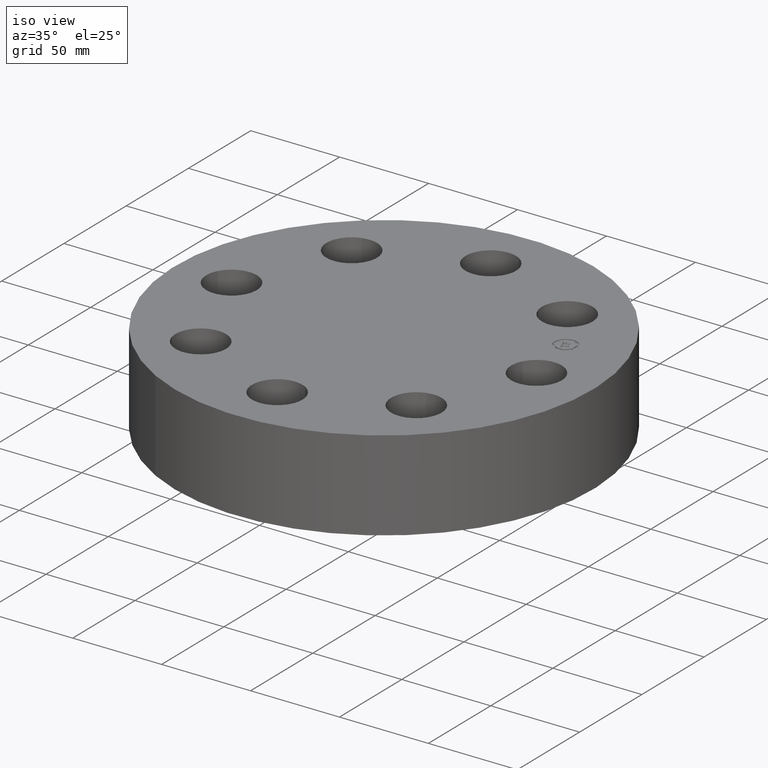
[diagram: clean part render]
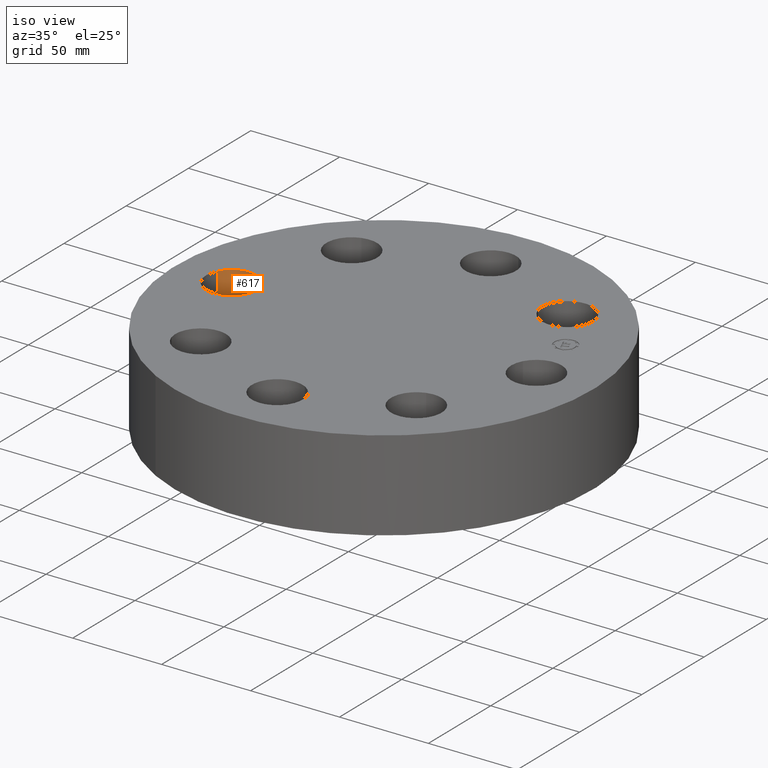
[diagram: same view with one face highlighted and labeled with its STEP entity id]
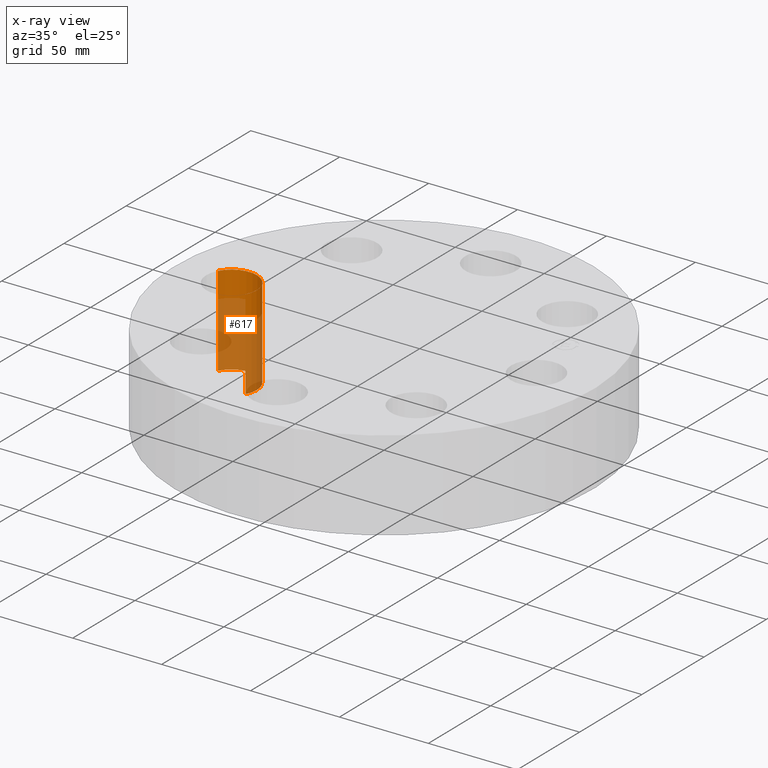
[diagram: x-ray of the same camera — body ghosted, the highlighted face saturated]
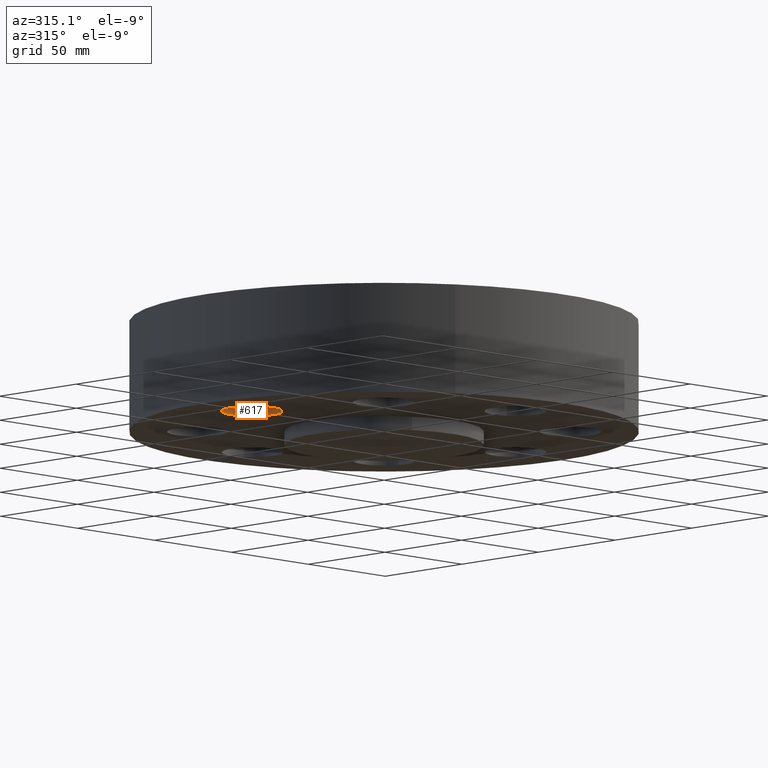
[diagram: same view with one face highlighted and labeled with its STEP entity id]
A machine part, iso view. The second image highlights one B-rep face of the part: STEP entity #617.
The next image is the same camera in x-ray: the body ghosted, the highlighted face saturated — about 67% of this face is hidden behind the body in this view.
A second angle (auxiliary view) of the same face is appended — the face is thin or edge-on in the first view.
In plain terms, the highlighted cylindrical surface (edge-blend (fillet) strip) has radius 14.224 mm, axis along (-0, 0, -1).
Its self-contained STEP definition (entity closure, byte-faithful):
#298=AXIS2_PLACEMENT_3D('Circle Axis2P3D',#296,#297,$) ;
#578=AXIS2_PLACEMENT_3D('Cylinder Axis2P3D',#575,#576,#577) ;
#608=AXIS2_PLACEMENT_3D('Circle Axis2P3D',#606,#607,$) ;
#291=CARTESIAN_POINT('Vertex',(-2.88355376535,-0.268478301619,0.)) ;
#293=CARTESIAN_POINT('Vertex',(-3.86644623467,0.268478301619,0.)) ;
#296=CARTESIAN_POINT('Axis2P3D Location',(-3.37500000001,-2.79741234551E-016,0.)) ;
#575=CARTESIAN_POINT('Axis2P3D Location',(-3.37500000001,-4.13318294714E-016,1.99606299213)) ;
#580=CARTESIAN_POINT('Line Origine',(-2.88355376535,-0.268478301619,1.)) ;
#584=CARTESIAN_POINT('Vertex',(-2.88355376535,-0.268478301619,2.00000000001)) ;
#587=CARTESIAN_POINT('Line Origine',(-3.86644623467,0.268478301619,1.)) ;
#591=CARTESIAN_POINT('Vertex',(-3.86644623467,0.268478301619,2.00000000001)) ;
#606=CARTESIAN_POINT('Axis2P3D Location',(-3.37500000001,-4.13318294714E-016,2.00000000001)) ;
#297=DIRECTION('Axis2P3D Direction',(0.,0.,-0.0393700787402)) ;
#576=DIRECTION('Axis2P3D Direction',(-0.,0.,-0.0393700787402)) ;
#577=DIRECTION('Axis2P3D XDirection',(-0.0345504945626,0.0188750212049,0.)) ;
#581=DIRECTION('Vector Direction',(0.,0.,-0.0393700787402)) ;
#588=DIRECTION('Vector Direction',(0.,0.,-0.0393700787402)) ;
#607=DIRECTION('Axis2P3D Direction',(-0.,0.,-0.0393700787402)) ;
#582=VECTOR('Line Direction',#581,0.0393700787402) ;
#589=VECTOR('Line Direction',#588,0.0393700787402) ;
#612=ORIENTED_EDGE('',*,*,#593,.F.) ;
#613=ORIENTED_EDGE('',*,*,#300,.T.) ;
#614=ORIENTED_EDGE('',*,*,#586,.T.) ;
#615=ORIENTED_EDGE('',*,*,#610,.F.) ;
#617=ADVANCED_FACE('PartBody',(#616),#579,.F.) ;
#299=CIRCLE('generated circle',#298,0.560000000002) ;
#609=CIRCLE('generated circle',#608,0.560000000002) ;
#579=CYLINDRICAL_SURFACE('generated cylinder',#578,0.560000000002) ;
#300=EDGE_CURVE('',#294,#292,#299,.T.) ;
#586=EDGE_CURVE('',#292,#585,#583,.F.) ;
#593=EDGE_CURVE('',#294,#592,#590,.F.) ;
#610=EDGE_CURVE('',#592,#585,#609,.T.) ;
#611=EDGE_LOOP('',(#612,#613,#614,#615)) ;
#616=FACE_OUTER_BOUND('',#611,.T.) ;
#583=LINE('Line',#580,#582) ;
#590=LINE('Line',#587,#589) ;
#292=VERTEX_POINT('',#291) ;
#294=VERTEX_POINT('',#293) ;
#585=VERTEX_POINT('',#584) ;
#592=VERTEX_POINT('',#591) ;